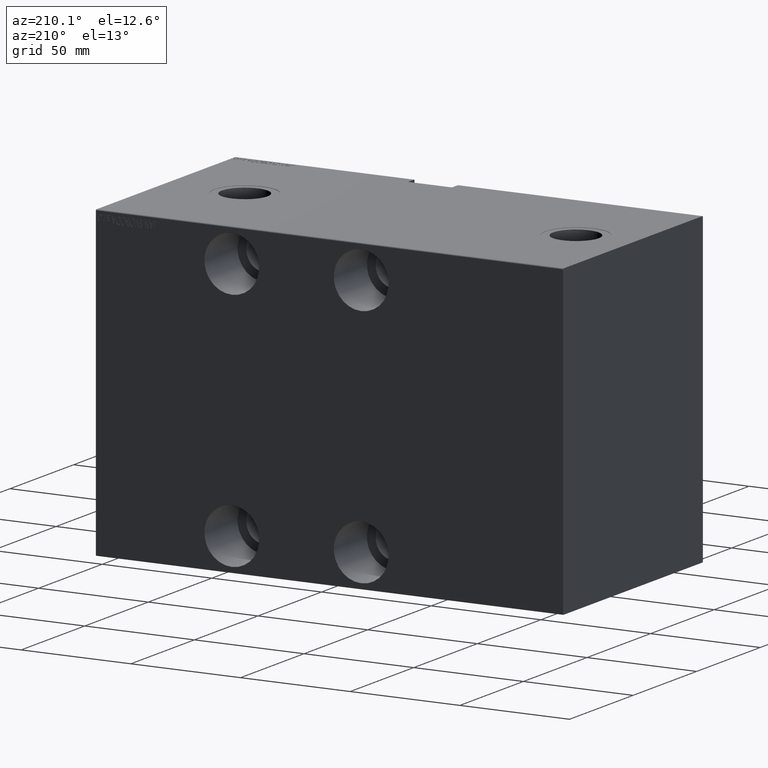
[diagram: clean part render]
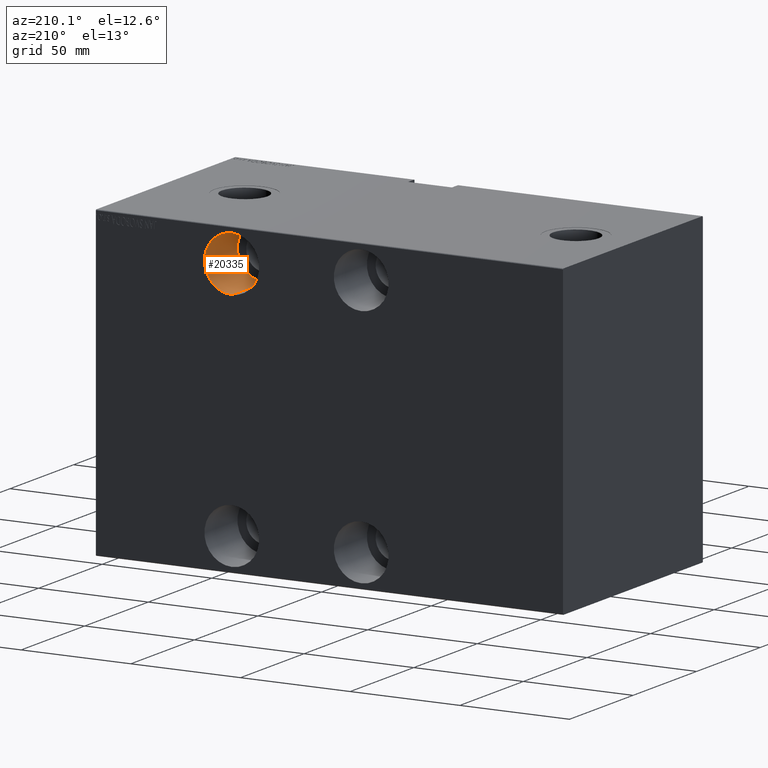
[diagram: same view with one face highlighted and labeled with its STEP entity id]
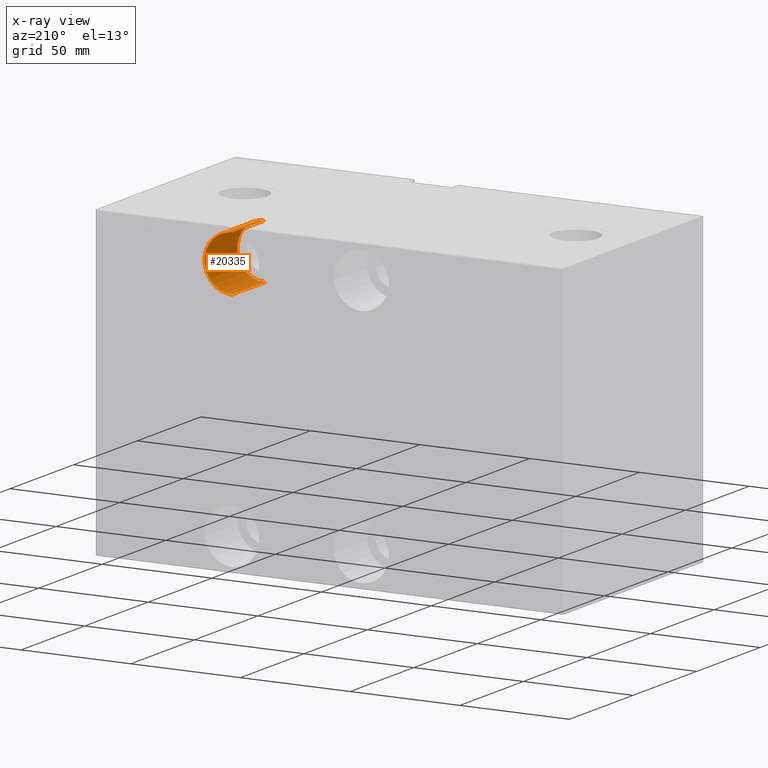
[diagram: x-ray of the same camera — body ghosted, the highlighted face saturated]
A machine part, auxiliary view. The second image highlights one B-rep face of the part: STEP entity #20335.
The next image is the same camera in x-ray: the body ghosted, the highlighted face saturated — about 0% of this face is hidden behind the body in this view.
In plain terms, the highlighted cylindrical surface (edge-blend (fillet) strip) has radius 12.5 mm, axis along (-0, 1, 0).
Its self-contained STEP definition (entity closure, byte-faithful):
#1675 = EDGE_CURVE ( 'NONE', #23739, #14193, #38548, .T. ) ;
#2409 = ORIENTED_EDGE ( 'NONE', *, *, #26092, .T. ) ;
#2709 = FACE_OUTER_BOUND ( 'NONE', #14239, .T. ) ;
#5416 = DIRECTION ( 'NONE',  ( 0.000000000000000000, 0.000000000000000000, -1.000000000000000000 ) ) ;
#6189 = VECTOR ( 'NONE', #13174, 1000.000000000000000 ) ;
#7339 = DIRECTION ( 'NONE',  ( 0.000000000000000000, 0.000000000000000000, -1.000000000000000000 ) ) ;
#8625 = EDGE_CURVE ( 'NONE', #14193, #15571, #30035, .T. ) ;
#9027 = ORIENTED_EDGE ( 'NONE', *, *, #8625, .F. ) ;
#9804 = ORIENTED_EDGE ( 'NONE', *, *, #31203, .T. ) ;
#13001 = CIRCLE ( 'NONE', #13695, 12.50000000000000355 ) ;
#13174 = DIRECTION ( 'NONE',  ( -0.000000000000000000, -1.000000000000000000, -0.000000000000000000 ) ) ;
#13695 = AXIS2_PLACEMENT_3D ( 'NONE', #32891, #26001, #5416 ) ;
#14172 = VERTEX_POINT ( 'NONE', #22482 ) ;
#14193 = VERTEX_POINT ( 'NONE', #25807 ) ;
#14239 = EDGE_LOOP ( 'NONE', ( #41528, #2409, #9804, #9027 ) ) ;
#15571 = VERTEX_POINT ( 'NONE', #42578 ) ;
#16864 = CYLINDRICAL_SURFACE ( 'NONE', #23445, 12.50000000000000355 ) ;
#18340 = DIRECTION ( 'NONE',  ( 0.000000000000000000, 0.000000000000000000, -1.000000000000000000 ) ) ;
#19419 = AXIS2_PLACEMENT_3D ( 'NONE', #34983, #24544, #18340 ) ;
#20175 = CARTESIAN_POINT ( 'NONE',  ( 62.00000000000001421, -28.99999999999999289, 55.00000000000001421 ) ) ;
#20335 = ADVANCED_FACE ( 'NONE', ( #2709 ), #16864, .F. ) ;
#22482 = CARTESIAN_POINT ( 'NONE',  ( 62.00000000000001421, -54.99999999999999289, 67.50000000000001421 ) ) ;
#23445 = AXIS2_PLACEMENT_3D ( 'NONE', #20175, #34599, #7339 ) ;
#23739 = VERTEX_POINT ( 'NONE', #24538 ) ;
#24538 = CARTESIAN_POINT ( 'NONE',  ( 62.00000000000001421, -28.99999999999999289, 67.50000000000001421 ) ) ;
#24544 = DIRECTION ( 'NONE',  ( 0.000000000000000000, -1.000000000000000000, 0.000000000000000000 ) ) ;
#25807 = CARTESIAN_POINT ( 'NONE',  ( 62.00000000000001421, -28.99999999999999289, 42.50000000000000711 ) ) ;
#26001 = DIRECTION ( 'NONE',  ( 0.000000000000000000, -1.000000000000000000, 0.000000000000000000 ) ) ;
#26092 = EDGE_CURVE ( 'NONE', #23739, #14172, #39041, .T. ) ;
#30035 = LINE ( 'NONE', #43137, #6189 ) ;
#31203 = EDGE_CURVE ( 'NONE', #14172, #15571, #13001, .T. ) ;
#32891 = CARTESIAN_POINT ( 'NONE',  ( 62.00000000000001421, -54.99999999999999289, 55.00000000000001421 ) ) ;
#34599 = DIRECTION ( 'NONE',  ( -0.000000000000000000, -1.000000000000000000, -0.000000000000000000 ) ) ;
#34983 = CARTESIAN_POINT ( 'NONE',  ( 62.00000000000001421, -28.99999999999999289, 55.00000000000001421 ) ) ;
#35297 = DIRECTION ( 'NONE',  ( -0.000000000000000000, -1.000000000000000000, -0.000000000000000000 ) ) ;
#38548 = CIRCLE ( 'NONE', #19419, 12.50000000000000355 ) ;
#38614 = CARTESIAN_POINT ( 'NONE',  ( 62.00000000000001421, -28.99999999999999289, 67.50000000000001421 ) ) ;
#39041 = LINE ( 'NONE', #38614, #39189 ) ;
#39189 = VECTOR ( 'NONE', #35297, 1000.000000000000000 ) ;
#41528 = ORIENTED_EDGE ( 'NONE', *, *, #1675, .F. ) ;
#42578 = CARTESIAN_POINT ( 'NONE',  ( 62.00000000000001421, -54.99999999999999289, 42.50000000000000711 ) ) ;
#43137 = CARTESIAN_POINT ( 'NONE',  ( 62.00000000000001421, -28.99999999999999289, 42.50000000000000711 ) ) ;